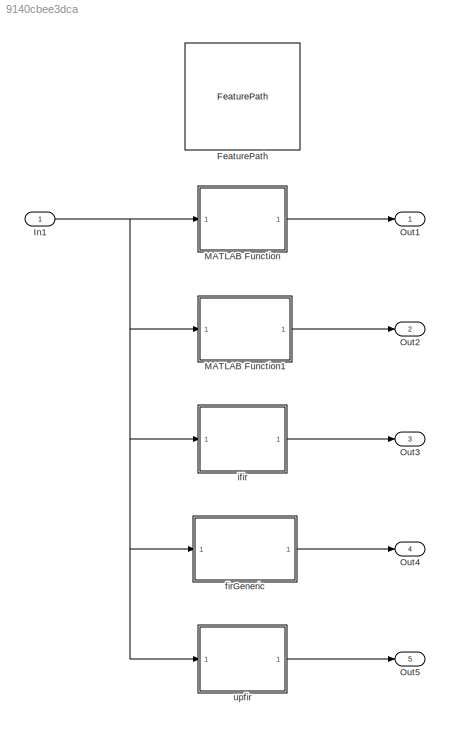
MODEL slx_9140cbee3dca
KIND model
CONFIG AbsTol = auto
CONFIG EnableMultiTasking = on
CONFIG FixedStep = auto
CONFIG InitFcn = frameSize = 32;\nnumChannels = 2;\nfs = 44100;\nmaxStages = 4;\nstagesPerChannel = [1 1];\ncoeffs = [1 0  0 1 0 0; 1 0 0 1 0 0];\n\nfirCoeffs = single(zeros(1,32));\nactiveCoeffSet = [0 0];
CONFIG MaxStep = auto
CONFIG MinStep = auto
CONFIG RelTol = 1e-3
CONFIG SampleTimeConstraint = Unconstrained
CONFIG SolverName = FixedStepDiscrete
CONFIG StartTime = 0.0
CONFIG StopTime = 5
BLOCK [Reference] FeaturePath  REF=FeaturePath/FeaturePath
  SourceBlock = FeaturePath/FeaturePath
  SourceType = Bose Feature Path
BLOCK [Inport] In1
  OutDataTypeStr = single
  PortDimensions = [frameSize numChannels]
  SampleTime = frameSize / fs
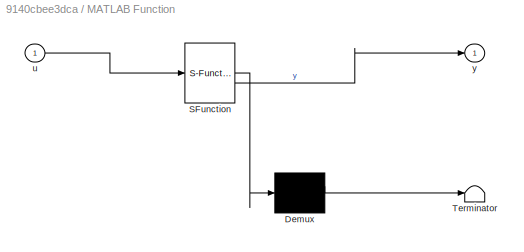
BLOCK [SubSystem] MATLAB Function
  ErrorFcn = Stateflow.Translate.translate
  PermitHierarchicalResolution = ExplicitOnly
  SFBlockType = MATLAB Function
  TreatAsAtomicUnit = on
BLOCK [Demux] MATLAB Function/ Demux 
  Outputs = 1
BLOCK [S-Function] MATLAB Function/ SFunction 
  EnableBusSupport = on
  FunctionName = sf_sfun
  PortCounts = [1 2]
  SFcnIsStateOwnerBlock = off
  SFunctionDeploymentMode = off
  Tag = Stateflow S-Function 2
BLOCK [Terminator] MATLAB Function/ Terminator 
BLOCK [Inport] MATLAB Function/u
BLOCK [Outport] MATLAB Function/y
  VectorParamsAs1DForOutWhenUnconnected = off
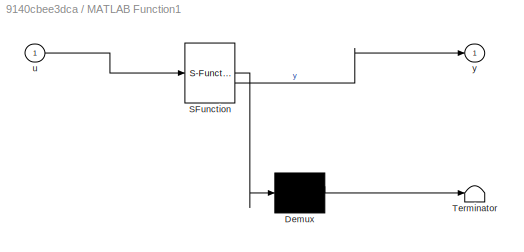
BLOCK [SubSystem] MATLAB Function1
  ErrorFcn = Stateflow.Translate.translate
  PermitHierarchicalResolution = ExplicitOnly
  SFBlockType = MATLAB Function
  TreatAsAtomicUnit = on
BLOCK [Demux] MATLAB Function1/ Demux 
  Outputs = 1
BLOCK [S-Function] MATLAB Function1/ SFunction 
  EnableBusSupport = on
  FunctionName = sf_sfun
  PortCounts = [1 2]
  SFcnIsStateOwnerBlock = off
  SFunctionDeploymentMode = off
  Tag = Stateflow S-Function 1
BLOCK [Terminator] MATLAB Function1/ Terminator 
BLOCK [Inport] MATLAB Function1/u
BLOCK [Outport] MATLAB Function1/y
  VectorParamsAs1DForOutWhenUnconnected = off
BLOCK [Outport] Out1
  VectorParamsAs1DForOutWhenUnconnected = off
BLOCK [Outport] Out2
  Port = 2
  VectorParamsAs1DForOutWhenUnconnected = off
BLOCK [Outport] Out3
  Port = 3
  VectorParamsAs1DForOutWhenUnconnected = off
BLOCK [Outport] Out4
  Port = 4
  VectorParamsAs1DForOutWhenUnconnected = off
BLOCK [Outport] Out5
  Port = 5
  VectorParamsAs1DForOutWhenUnconnected = off
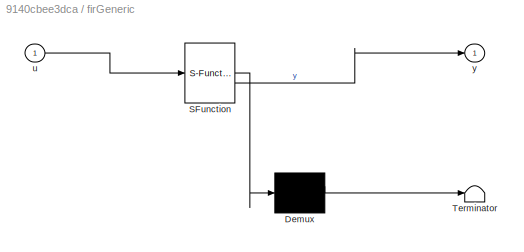
BLOCK [SubSystem] firGeneric
  ErrorFcn = Stateflow.Translate.translate
  PermitHierarchicalResolution = ExplicitOnly
  SFBlockType = MATLAB Function
  TreatAsAtomicUnit = on
BLOCK [Demux] firGeneric/ Demux 
  Outputs = 1
BLOCK [S-Function] firGeneric/ SFunction 
  EnableBusSupport = on
  FunctionName = sf_sfun
  PortCounts = [1 2]
  SFcnIsStateOwnerBlock = off
  SFunctionDeploymentMode = off
  Tag = Stateflow S-Function 4
BLOCK [Terminator] firGeneric/ Terminator 
BLOCK [Inport] firGeneric/u
BLOCK [Outport] firGeneric/y
  VectorParamsAs1DForOutWhenUnconnected = off
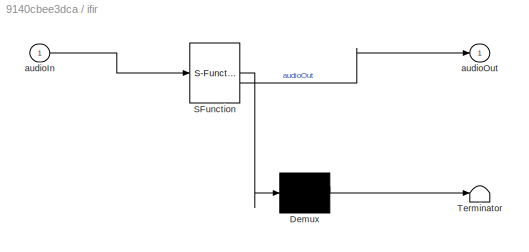
BLOCK [SubSystem] ifir
  ErrorFcn = Stateflow.Translate.translate
  PermitHierarchicalResolution = ExplicitOnly
  SFBlockType = MATLAB Function
  TreatAsAtomicUnit = on
BLOCK [Demux] ifir/ Demux 
  Outputs = 1
BLOCK [S-Function] ifir/ SFunction 
  EnableBusSupport = on
  FunctionName = sf_sfun
  PortCounts = [1 2]
  SFcnIsStateOwnerBlock = off
  SFunctionDeploymentMode = off
  Tag = Stateflow S-Function 3
BLOCK [Terminator] ifir/ Terminator 
BLOCK [Inport] ifir/audioIn
BLOCK [Outport] ifir/audioOut
  VectorParamsAs1DForOutWhenUnconnected = off
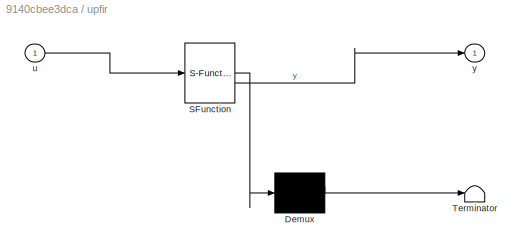
BLOCK [SubSystem] upfir
  ErrorFcn = Stateflow.Translate.translate
  PermitHierarchicalResolution = ExplicitOnly
  SFBlockType = MATLAB Function
  TreatAsAtomicUnit = on
BLOCK [Demux] upfir/ Demux 
  Outputs = 1
BLOCK [S-Function] upfir/ SFunction 
  EnableBusSupport = on
  FunctionName = sf_sfun
  PortCounts = [1 2]
  SFcnIsStateOwnerBlock = off
  SFunctionDeploymentMode = off
  Tag = Stateflow S-Function 5
BLOCK [Terminator] upfir/ Terminator 
BLOCK [Inport] upfir/u
BLOCK [Outport] upfir/y
NET In1:1 -> MATLAB Function1:1, MATLAB Function:1, firGeneric:1, ifir:1, upfir:1
LINE MATLAB Function1:1 -> Out2:1
LINE MATLAB Function:1 -> Out1:1
LINE firGeneric:1 -> Out4:1
LINE ifir:1 -> Out3:1
LINE upfir:1 -> Out5:1
note: NET lines group one-source signal fan-out (src -> all destinations, sorted); 1:1 wires keep LINE
CHART MATLAB Function1 states=1 transitions=1
  STATE_LABEL 'eML_blk_kernel()'
  STATE_LABEL 'SCRIPT:\nfunction y = firEvenCRLTrigger(u)\n\nfirLength = 64;\nflipped_coeffs = single(zeros(1,firLength));\n\n\n% Extract configuration information from inputs\n[taps, ~] = size(flipped_coeffs);\n[frame_size, num_channels] = size(u);\n\n% Initialize variables\npersistent states;\nif isempty(states)\n    states = single(zeros(taps + 2, num_channels));\nend\n\npersistent state_index;\nif isempty(state_index)\n    sta...<+566ch>'
CHART MATLAB Function states=1 transitions=1
  STATE_LABEL 'eML_blk_kernel()'
  STATE_LABEL 'SCRIPT:\nfunction y = pooliirCRLTrigger(u)\n% This function is intended to trigger the special pooliir CRL which also\n% copies the source file into the code gen directory and builds it\n\n[frame_size, num_channels] = size(u);\n\n% Initialize variables\npersistent states;\nif isempty(states)\n    states = single(zeros(size(u)));\nend\n\nnumStages = uint32(ones(1,num_channels));\ncoeffs = single(zeros(size(u)));...<+311ch>'
CHART ifir states=1 transitions=1
  STATE_LABEL 'eML_blk_kernel()'
  STATE_LABEL 'SCRIPT:\nfunction audioOut = ifirCRLTrigger(audioIn)\n\nI = int32(2);\ncoeffsFlip = single(zeros(10,1));\n% An interpolated FIR filter is an FIR filter with a sparse set of\n% coefficients.  That is, the coefficients contain I-1 zeros between\n% each point, so the effective length of  filter is len(input_coeffs) * I  \n% The function support multiple channels, with each\n% channel sharing the same set of f...<+1513ch>'
CHART firGeneric states=1 transitions=1
  STATE_LABEL 'eML_blk_kernel()'
  STATE_LABEL 'SCRIPT:\nfunction y = firGenericCRLTrigger(u)\n% Generic FIR function to work with M inputs, N outputs and K filters\n%\n% Parameters:\n%   u:              input channels [frame size x number of inputs]\n%   coeffs:         coefficient sets [total filter lengths x 1]\n%   filterLengths:  array of filter lengths [number of filters x 1]\n%   inputMapping:   zero-based input mapping for each filter  [number ...<+949ch>'
CHART upfir states=1 transitions=1
  STATE_LABEL 'eML_blk_kernel()'
  STATE_LABEL 'SCRIPT:\nfunction y = upfirCRLTrigger(u)\n\nfirLength = 64;\ninterp_factor = 4;\nflipped_coeffs = single(zeros(1,firLength));\n\n[frame_size, num_channels] = size(u);\n[taps, ~] = size(flipped_coeffs);\npolyLen = taps/interp_factor;\nactive_coeff_set = zeros(1,num_channels);\n\npersistent states;\nif isempty(states)\n    states = single(zeros(taps + 2, num_channels));\nend\n\npersistent state_index;\nif isempty(sta...<+922ch>'
CHART  states=0 transitions=0
CHART  states=0 transitions=0
CHART  states=0 transitions=0
CHART  states=0 transitions=0
CHART  states=0 transitions=0
